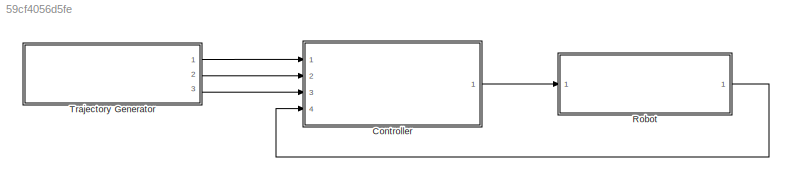
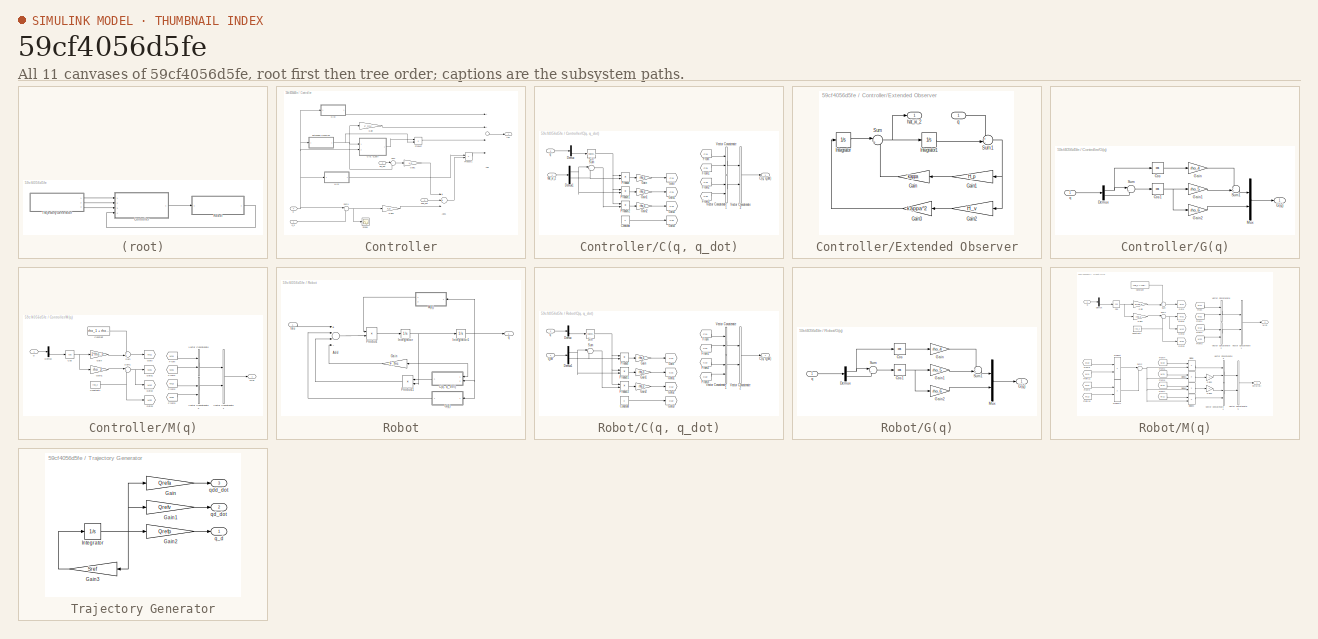
[diagram: thumbnail index - all 11 canvases of the model, root first then tree order]
MODEL slx_59cf4056d5fe
KIND model
CONFIG AbsTol = auto
CONFIG EnableMultiTasking = off
CONFIG FixedStep = auto
CONFIG InitFcn = % generator parameters\nA_1 = 1;\nA_2 = 1;\npsi_1 = 0;\npsi_2 = 0;\nomegaref_1 = 1;\nomegaref_2 = 2;\n\nwref_0 = [A_1*sin(psi_1) omegaref_1*A_1*cos(psi_1) A_2*sin(psi_2) omegaref_2*A_2*cos(psi_2)];\nSref = [0 1 0 0; -omegaref_1^2 0 0 0 ; 0 0 0 1; 0 0 -omegaref_2^2 0];\nQrefp = [1 0 0 0; 0 0 1 0];\nQrefv = [0 1 0 0 ; 0 0 0 1];\nQrefa = [-omegaref_1^2 0 0 0; 0 0 -omegaref_2^2 0];\n\n% model parameters\nm_1 = 1;\nm_...<+433ch>
CONFIG MaxStep = auto
CONFIG MinStep = auto
CONFIG RelTol = 1e-3
CONFIG SampleTimeConstraint = Unconstrained
CONFIG Solver = VariableStepAuto
CONFIG SolverName = VariableStepAuto
CONFIG StartTime = 0.0
CONFIG StopTime = 10.0
BLOCK [SubSystem] Controller
  Ports = [4, 1]
  RequestExecContextInheritance = off
BLOCK [Sum] Controller/Add
  InputSameDT = off
  Inputs = 4
  OutDataTypeStr = Inherit: Inherit via internal rule
  Ports = [4, 1]
  SaturateOnIntegerOverflow = off
BLOCK [Sum] Controller/Add1
  InputSameDT = off
  Inputs = 3
  OutDataTypeStr = Inherit: Inherit via internal rule
  Ports = [3, 1]
  SaturateOnIntegerOverflow = off
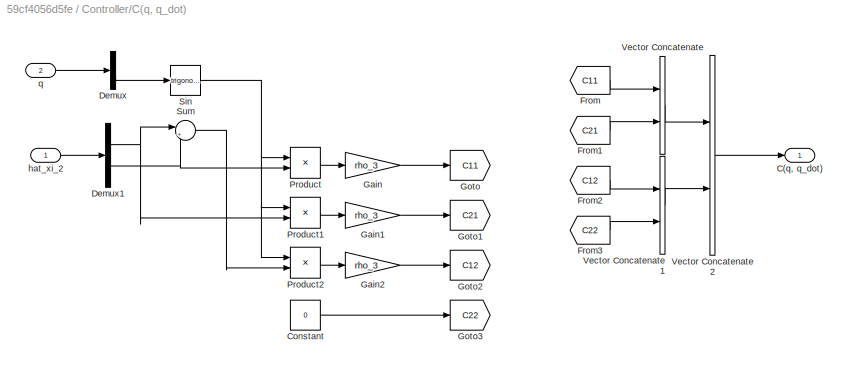
BLOCK [SubSystem] Controller/C(q, q_dot)
  Ports = [2, 1]
  RequestExecContextInheritance = off
BLOCK [Outport] Controller/C(q, q_dot)/C(q, q_dot)
  IconDisplay = Port number
BLOCK [Constant] Controller/C(q, q_dot)/Constant
  Value = 0
BLOCK [Demux] Controller/C(q, q_dot)/Demux
  DisplayOption = bar
  Outputs = 2
  Ports = [1, 2]
BLOCK [Demux] Controller/C(q, q_dot)/Demux1
  DisplayOption = bar
  Outputs = 2
  Ports = [1, 2]
BLOCK [From] Controller/C(q, q_dot)/From
  GotoTag = C11
BLOCK [From] Controller/C(q, q_dot)/From1
  GotoTag = C21
BLOCK [From] Controller/C(q, q_dot)/From2
  GotoTag = C12
BLOCK [From] Controller/C(q, q_dot)/From3
  GotoTag = C22
BLOCK [Gain] Controller/C(q, q_dot)/Gain
  Gain = rho_3
  OutDataTypeStr = Inherit: Inherit via internal rule
  ParamDataTypeStr = Inherit: Inherit via internal rule
  SaturateOnIntegerOverflow = off
BLOCK [Gain] Controller/C(q, q_dot)/Gain1
  Gain = rho_3
  OutDataTypeStr = Inherit: Inherit via internal rule
  ParamDataTypeStr = Inherit: Inherit via internal rule
  SaturateOnIntegerOverflow = off
BLOCK [Gain] Controller/C(q, q_dot)/Gain2
  Gain = rho_3
  OutDataTypeStr = Inherit: Inherit via internal rule
  ParamDataTypeStr = Inherit: Inherit via internal rule
  SaturateOnIntegerOverflow = off
BLOCK [Goto] Controller/C(q, q_dot)/Goto
  GotoTag = C11
BLOCK [Goto] Controller/C(q, q_dot)/Goto1
  GotoTag = C21
BLOCK [Goto] Controller/C(q, q_dot)/Goto2
  GotoTag = C12
BLOCK [Goto] Controller/C(q, q_dot)/Goto3
  GotoTag = C22
BLOCK [Product] Controller/C(q, q_dot)/Product
  InputSameDT = off
  OutDataTypeStr = Inherit: Inherit via internal rule
  Ports = [2, 1]
  RndMeth = Floor
  SaturateOnIntegerOverflow = off
BLOCK [Product] Controller/C(q, q_dot)/Product1
  InputSameDT = off
  OutDataTypeStr = Inherit: Inherit via internal rule
  Ports = [2, 1]
  RndMeth = Floor
  SaturateOnIntegerOverflow = off
BLOCK [Product] Controller/C(q, q_dot)/Product2
  InputSameDT = off
  OutDataTypeStr = Inherit: Inherit via internal rule
  Ports = [2, 1]
  RndMeth = Floor
  SaturateOnIntegerOverflow = off
BLOCK [Trigonometry] Controller/C(q, q_dot)/Sin
  Ports = [1, 1]
BLOCK [Sum] Controller/C(q, q_dot)/Sum
  IconShape = round
  InputSameDT = off
  Inputs = |++
  OutDataTypeStr = Inherit: Inherit via internal rule
  Ports = [2, 1]
  SaturateOnIntegerOverflow = off
BLOCK [Concatenate] Controller/C(q, q_dot)/Vector Concatenate
  Ports = [2, 1]
BLOCK [Concatenate] Controller/C(q, q_dot)/Vector Concatenate1
  Ports = [2, 1]
BLOCK [Concatenate] Controller/C(q, q_dot)/Vector Concatenate2
  ConcatenateDimension = 2
  Mode = Multidimensional array
  Ports = [2, 1]
BLOCK [Inport] Controller/C(q, q_dot)/hat_xi_2
  IconDisplay = Port number
BLOCK [Inport] Controller/C(q, q_dot)/q
  IconDisplay = Port number
  Port = 2
BLOCK [SubSystem] Controller/Extended Observer
  Ports = [1, 1]
  RequestExecContextInheritance = off
BLOCK [Gain] Controller/Extended Observer/Gain
  Gain = kappa
  OutDataTypeStr = Inherit: Inherit via internal rule
  ParamDataTypeStr = Inherit: Inherit via internal rule
  SaturateOnIntegerOverflow = off
BLOCK [Gain] Controller/Extended Observer/Gain1
  Gain = H_p
  Multiplication = Matrix(K*u) (u vector)
  OutDataTypeStr = Inherit: Inherit via internal rule
  ParamDataTypeStr = Inherit: Inherit via internal rule
  SaturateOnIntegerOverflow = off
BLOCK [Gain] Controller/Extended Observer/Gain2
  Gain = H_v
  Multiplication = Matrix(K*u) (u vector)
  OutDataTypeStr = Inherit: Inherit via internal rule
  ParamDataTypeStr = Inherit: Inherit via internal rule
  SaturateOnIntegerOverflow = off
BLOCK [Gain] Controller/Extended Observer/Gain3
  Gain = kappa^2
  OutDataTypeStr = Inherit: Inherit via internal rule
  ParamDataTypeStr = Inherit: Inherit via internal rule
  SaturateOnIntegerOverflow = off
BLOCK [Integrator] Controller/Extended Observer/Integrator
  Ports = [1, 1]
BLOCK [Integrator] Controller/Extended Observer/Integrator1
  Ports = [1, 1]
BLOCK [Sum] Controller/Extended Observer/Sum
  IconShape = round
  InputSameDT = off
  Inputs = |++
  OutDataTypeStr = Inherit: Inherit via internal rule
  Ports = [2, 1]
  SaturateOnIntegerOverflow = off
BLOCK [Sum] Controller/Extended Observer/Sum1
  IconShape = round
  InputSameDT = off
  Inputs = +-|
  OutDataTypeStr = Inherit: Inherit via internal rule
  Ports = [2, 1]
  SaturateOnIntegerOverflow = off
BLOCK [Outport] Controller/Extended Observer/hat_xi_2
  IconDisplay = Port number
BLOCK [Inport] Controller/Extended Observer/q
  IconDisplay = Port number
BLOCK [SubSystem] Controller/G(q)
  Ports = [1, 1]
  RequestExecContextInheritance = off
BLOCK [Trigonometry] Controller/G(q)/Cos
  Operator = cos
  Ports = [1, 1]
BLOCK [Trigonometry] Controller/G(q)/Cos1
  Operator = cos
  Ports = [1, 1]
BLOCK [Demux] Controller/G(q)/Demux
  DisplayOption = bar
  Outputs = 2
  Ports = [1, 2]
BLOCK [Outport] Controller/G(q)/G(q)
  IconDisplay = Port number
BLOCK [Gain] Controller/G(q)/Gain
  Gain = rho_4
  OutDataTypeStr = Inherit: Inherit via internal rule
  ParamDataTypeStr = Inherit: Inherit via internal rule
  SaturateOnIntegerOverflow = off
BLOCK [Gain] Controller/G(q)/Gain1
  Gain = rho_5
  OutDataTypeStr = Inherit: Inherit via internal rule
  ParamDataTypeStr = Inherit: Inherit via internal rule
  SaturateOnIntegerOverflow = off
BLOCK [Gain] Controller/G(q)/Gain2
  Gain = rho_6
  OutDataTypeStr = Inherit: Inherit via internal rule
  ParamDataTypeStr = Inherit: Inherit via internal rule
  SaturateOnIntegerOverflow = off
BLOCK [Mux] Controller/G(q)/Mux
  DisplayOption = bar
  Inputs = 2
  Ports = [2, 1]
BLOCK [Sum] Controller/G(q)/Sum
  IconShape = round
  InputSameDT = off
  Inputs = |++
  OutDataTypeStr = Inherit: Inherit via internal rule
  Ports = [2, 1]
  SaturateOnIntegerOverflow = off
BLOCK [Sum] Controller/G(q)/Sum1
  IconShape = round
  InputSameDT = off
  Inputs = ++|
  OutDataTypeStr = Inherit: Inherit via internal rule
  Ports = [2, 1]
  SaturateOnIntegerOverflow = off
BLOCK [Inport] Controller/G(q)/q
  IconDisplay = Port number
BLOCK [Gain] Controller/Gain
  Gain = F_fric
  Multiplication = Matrix(K*u) (u vector)
  OutDataTypeStr = Inherit: Inherit via internal rule
  ParamDataTypeStr = Inherit: Inherit via internal rule
  SaturateOnIntegerOverflow = off
BLOCK [Gain] Controller/Gain1
  Gain = K_d
  Multiplication = Matrix(K*u) (u vector)
  OutDataTypeStr = Inherit: Inherit via internal rule
  ParamDataTypeStr = Inherit: Inherit via internal rule
  SaturateOnIntegerOverflow = off
BLOCK [Gain] Controller/Gain2
  Gain = K_p
  Multiplication = Matrix(K*u) (u vector)
  OutDataTypeStr = Inherit: Inherit via internal rule
  ParamDataTypeStr = Inherit: Inherit via internal rule
  SaturateOnIntegerOverflow = off
BLOCK [SubSystem] Controller/M(q)
  Ports = [1, 1]
  RequestExecContextInheritance = off
BLOCK [Constant] Controller/M(q)/Constant
  Value = rho_1 + rho_2
BLOCK [Constant] Controller/M(q)/Constant1
  Value = rho_2
BLOCK [Trigonometry] Controller/M(q)/Cos
  Operator = cos
  Ports = [1, 1]
BLOCK [Demux] Controller/M(q)/Demux
  DisplayOption = bar
  Outputs = 2
  Ports = [1, 2]
BLOCK [From] Controller/M(q)/From
  GotoTag = M11
BLOCK [From] Controller/M(q)/From1
  GotoTag = M21
BLOCK [From] Controller/M(q)/From2
  GotoTag = M12
BLOCK [From] Controller/M(q)/From3
  GotoTag = M22
BLOCK [Gain] Controller/M(q)/Gain
  Gain = 2*rho_3
  OutDataTypeStr = Inherit: Inherit via internal rule
  ParamDataTypeStr = Inherit: Inherit via internal rule
  SaturateOnIntegerOverflow = off
BLOCK [Gain] Controller/M(q)/Gain1
  Gain = rho_3
  OutDataTypeStr = Inherit: Inherit via internal rule
  ParamDataTypeStr = Inherit: Inherit via internal rule
  SaturateOnIntegerOverflow = off
BLOCK [Goto] Controller/M(q)/Goto
  GotoTag = M11
BLOCK [Goto] Controller/M(q)/Goto1
  GotoTag = M21
BLOCK [Goto] Controller/M(q)/Goto2
  GotoTag = M12
BLOCK [Goto] Controller/M(q)/Goto3
  GotoTag = M22
BLOCK [Outport] Controller/M(q)/M(q)
  IconDisplay = Port number
BLOCK [Sum] Controller/M(q)/Sum
  IconShape = round
  InputSameDT = off
  Inputs = ++|
  OutDataTypeStr = Inherit: Inherit via internal rule
  Ports = [2, 1]
  SaturateOnIntegerOverflow = off
BLOCK [Sum] Controller/M(q)/Sum1
  IconShape = round
  InputSameDT = off
  Inputs = |++
  OutDataTypeStr = Inherit: Inherit via internal rule
  Ports = [2, 1]
  SaturateOnIntegerOverflow = off
BLOCK [Concatenate] Controller/M(q)/Vector Concatenate
  Ports = [2, 1]
BLOCK [Concatenate] Controller/M(q)/Vector Concatenate1
  ConcatenateDimension = 2
  Mode = Multidimensional array
  Ports = [2, 1]
BLOCK [Concatenate] Controller/M(q)/Vector Concatenate2
  Ports = [2, 1]
BLOCK [Inport] Controller/M(q)/q
  IconDisplay = Port number
BLOCK [Product] Controller/Product
  InputSameDT = off
  Multiplication = Matrix(*)
  OutDataTypeStr = Inherit: Inherit via internal rule
  Ports = [2, 1]
  RndMeth = Floor
  SaturateOnIntegerOverflow = off
BLOCK [Product] Controller/Product1
  InputSameDT = off
  Multiplication = Matrix(*)
  OutDataTypeStr = Inherit: Inherit via internal rule
  Ports = [2, 1]
  RndMeth = Floor
  SaturateOnIntegerOverflow = off
BLOCK [Scope] Controller/Scope
  Floating = off
  NumInputPorts = 1
  Ports = [1]
  ScopeSpecificationString = Simulink.scopes.TimeScopeBlockCfg('CurrentConfiguration', extmgr.ConfigurationSet(extmgr.Configuration('Core','General UI',true),extmgr.Configuration('Core','Source UI',true),extmgr.Configuration('Sources','WiredSimulink',true),extmgr.Configuration('Visuals','Time Domain',true,'SerializedDisplays',{struct('MinYLimReal','-0.00241','MaxYLimReal','0.02168','YLabelReal','','MinYLimMag','0.00000','MaxY...<+1368ch>
BLOCK [Sum] Controller/Sum
  IconShape = round
  InputSameDT = off
  Inputs = |+-
  OutDataTypeStr = Inherit: Inherit via internal rule
  Ports = [2, 1]
  SaturateOnIntegerOverflow = off
BLOCK [Sum] Controller/Sum1
  IconShape = round
  InputSameDT = off
  Inputs = |-+
  OutDataTypeStr = Inherit: Inherit via internal rule
  Ports = [2, 1]
  SaturateOnIntegerOverflow = off
BLOCK [Inport] Controller/q
  IconDisplay = Port number
  Port = 4
BLOCK [Inport] Controller/q_d
  IconDisplay = Port number
BLOCK [Inport] Controller/qd_dot
  IconDisplay = Port number
  Port = 2
BLOCK [Inport] Controller/qdd_dot
  IconDisplay = Port number
  Port = 3
BLOCK [Outport] Controller/tau
  IconDisplay = Port number
BLOCK [SubSystem] Robot
  Ports = [1, 1]
  RequestExecContextInheritance = off
BLOCK [Sum] Robot/Add
  InputSameDT = off
  Inputs = +---
  OutDataTypeStr = Inherit: Inherit via internal rule
  Ports = [4, 1]
  SaturateOnIntegerOverflow = off
BLOCK [SubSystem] Robot/C(q, q_dot)
  Ports = [2, 1]
  RequestExecContextInheritance = off
BLOCK [Outport] Robot/C(q, q_dot)/C(q, q_dot)
  IconDisplay = Port number
BLOCK [Constant] Robot/C(q, q_dot)/Constant
  Value = 0
BLOCK [Demux] Robot/C(q, q_dot)/Demux
  DisplayOption = bar
  Outputs = 2
  Ports = [1, 2]
BLOCK [Demux] Robot/C(q, q_dot)/Demux1
  DisplayOption = bar
  Outputs = 2
  Ports = [1, 2]
BLOCK [From] Robot/C(q, q_dot)/From
  GotoTag = C11
BLOCK [From] Robot/C(q, q_dot)/From1
  GotoTag = C21
BLOCK [From] Robot/C(q, q_dot)/From2
  GotoTag = C12
BLOCK [From] Robot/C(q, q_dot)/From3
  GotoTag = C22
BLOCK [Gain] Robot/C(q, q_dot)/Gain
  Gain = rho_3
  OutDataTypeStr = Inherit: Inherit via internal rule
  ParamDataTypeStr = Inherit: Inherit via internal rule
  SaturateOnIntegerOverflow = off
BLOCK [Gain] Robot/C(q, q_dot)/Gain1
  Gain = rho_3
  OutDataTypeStr = Inherit: Inherit via internal rule
  ParamDataTypeStr = Inherit: Inherit via internal rule
  SaturateOnIntegerOverflow = off
BLOCK [Gain] Robot/C(q, q_dot)/Gain2
  Gain = rho_3
  OutDataTypeStr = Inherit: Inherit via internal rule
  ParamDataTypeStr = Inherit: Inherit via internal rule
  SaturateOnIntegerOverflow = off
BLOCK [Goto] Robot/C(q, q_dot)/Goto
  GotoTag = C11
BLOCK [Goto] Robot/C(q, q_dot)/Goto1
  GotoTag = C21
BLOCK [Goto] Robot/C(q, q_dot)/Goto2
  GotoTag = C12
BLOCK [Goto] Robot/C(q, q_dot)/Goto3
  GotoTag = C22
BLOCK [Product] Robot/C(q, q_dot)/Product
  InputSameDT = off
  OutDataTypeStr = Inherit: Inherit via internal rule
  Ports = [2, 1]
  RndMeth = Floor
  SaturateOnIntegerOverflow = off
BLOCK [Product] Robot/C(q, q_dot)/Product1
  InputSameDT = off
  OutDataTypeStr = Inherit: Inherit via internal rule
  Ports = [2, 1]
  RndMeth = Floor
  SaturateOnIntegerOverflow = off
BLOCK [Product] Robot/C(q, q_dot)/Product2
  InputSameDT = off
  OutDataTypeStr = Inherit: Inherit via internal rule
  Ports = [2, 1]
  RndMeth = Floor
  SaturateOnIntegerOverflow = off
BLOCK [Trigonometry] Robot/C(q, q_dot)/Sin
  Ports = [1, 1]
BLOCK [Sum] Robot/C(q, q_dot)/Sum
  IconShape = round
  InputSameDT = off
  Inputs = |++
  OutDataTypeStr = Inherit: Inherit via internal rule
  Ports = [2, 1]
  SaturateOnIntegerOverflow = off
BLOCK [Concatenate] Robot/C(q, q_dot)/Vector Concatenate
  Ports = [2, 1]
BLOCK [Concatenate] Robot/C(q, q_dot)/Vector Concatenate1
  Ports = [2, 1]
BLOCK [Concatenate] Robot/C(q, q_dot)/Vector Concatenate2
  ConcatenateDimension = 2
  Mode = Multidimensional array
  Ports = [2, 1]
BLOCK [Inport] Robot/C(q, q_dot)/q
  IconDisplay = Port number
  Port = 2
BLOCK [Inport] Robot/C(q, q_dot)/q_dot
  IconDisplay = Port number
BLOCK [SubSystem] Robot/G(q)
  Ports = [1, 1]
  RequestExecContextInheritance = off
BLOCK [Trigonometry] Robot/G(q)/Cos
  Operator = cos
  Ports = [1, 1]
BLOCK [Trigonometry] Robot/G(q)/Cos1
  Operator = cos
  Ports = [1, 1]
BLOCK [Demux] Robot/G(q)/Demux
  DisplayOption = bar
  Outputs = 2
  Ports = [1, 2]
BLOCK [Outport] Robot/G(q)/G(q)
  IconDisplay = Port number
BLOCK [Gain] Robot/G(q)/Gain
  Gain = rho_4
  OutDataTypeStr = Inherit: Inherit via internal rule
  ParamDataTypeStr = Inherit: Inherit via internal rule
  SaturateOnIntegerOverflow = off
BLOCK [Gain] Robot/G(q)/Gain1
  Gain = rho_5
  OutDataTypeStr = Inherit: Inherit via internal rule
  ParamDataTypeStr = Inherit: Inherit via internal rule
  SaturateOnIntegerOverflow = off
BLOCK [Gain] Robot/G(q)/Gain2
  Gain = rho_6
  OutDataTypeStr = Inherit: Inherit via internal rule
  ParamDataTypeStr = Inherit: Inherit via internal rule
  SaturateOnIntegerOverflow = off
BLOCK [Mux] Robot/G(q)/Mux
  DisplayOption = bar
  Inputs = 2
  Ports = [2, 1]
BLOCK [Sum] Robot/G(q)/Sum
  IconShape = round
  InputSameDT = off
  Inputs = |++
  OutDataTypeStr = Inherit: Inherit via internal rule
  Ports = [2, 1]
  SaturateOnIntegerOverflow = off
BLOCK [Sum] Robot/G(q)/Sum1
  IconShape = round
  InputSameDT = off
  Inputs = ++|
  OutDataTypeStr = Inherit: Inherit via internal rule
  Ports = [2, 1]
  SaturateOnIntegerOverflow = off
BLOCK [Inport] Robot/G(q)/q
  IconDisplay = Port number
BLOCK [Gain] Robot/Gain
  Gain = F_fric
  Multiplication = Matrix(K*u) (u vector)
  OutDataTypeStr = Inherit: Inherit via internal rule
  ParamDataTypeStr = Inherit: Inherit via internal rule
  SaturateOnIntegerOverflow = off
BLOCK [Integrator] Robot/Integrator
  Ports = [1, 1]
BLOCK [Integrator] Robot/Integrator1
  Ports = [1, 1]
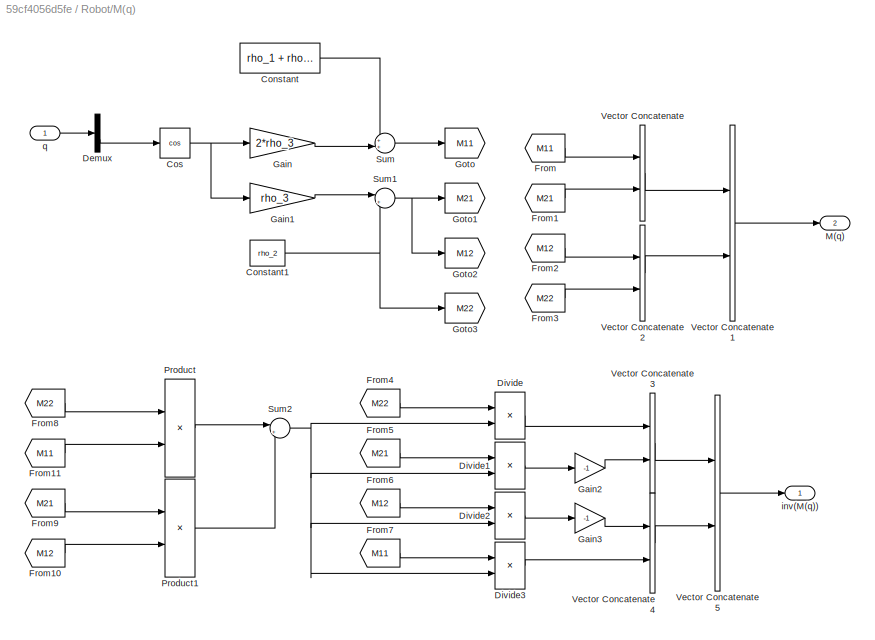
BLOCK [SubSystem] Robot/M(q)
  Ports = [1, 2]
  RequestExecContextInheritance = off
BLOCK [Constant] Robot/M(q)/Constant
  Value = rho_1 + rho_2
BLOCK [Constant] Robot/M(q)/Constant1
  Value = rho_2
BLOCK [Trigonometry] Robot/M(q)/Cos
  Operator = cos
  Ports = [1, 1]
BLOCK [Demux] Robot/M(q)/Demux
  DisplayOption = bar
  Outputs = 2
  Ports = [1, 2]
BLOCK [Product] Robot/M(q)/Divide
  InputSameDT = off
  Inputs = */
  OutDataTypeStr = Inherit: Inherit via internal rule
  Ports = [2, 1]
  RndMeth = Floor
  SaturateOnIntegerOverflow = off
BLOCK [Product] Robot/M(q)/Divide1
  InputSameDT = off
  Inputs = */
  OutDataTypeStr = Inherit: Inherit via internal rule
  Ports = [2, 1]
  RndMeth = Floor
  SaturateOnIntegerOverflow = off
BLOCK [Product] Robot/M(q)/Divide2
  InputSameDT = off
  Inputs = */
  OutDataTypeStr = Inherit: Inherit via internal rule
  Ports = [2, 1]
  RndMeth = Floor
  SaturateOnIntegerOverflow = off
BLOCK [Product] Robot/M(q)/Divide3
  InputSameDT = off
  Inputs = */
  OutDataTypeStr = Inherit: Inherit via internal rule
  Ports = [2, 1]
  RndMeth = Floor
  SaturateOnIntegerOverflow = off
BLOCK [From] Robot/M(q)/From
  GotoTag = M11
BLOCK [From] Robot/M(q)/From1
  GotoTag = M21
BLOCK [From] Robot/M(q)/From10
  GotoTag = M12
BLOCK [From] Robot/M(q)/From11
  GotoTag = M11
BLOCK [From] Robot/M(q)/From2
  GotoTag = M12
BLOCK [From] Robot/M(q)/From3
  GotoTag = M22
BLOCK [From] Robot/M(q)/From4
  GotoTag = M22
BLOCK [From] Robot/M(q)/From5
  GotoTag = M21
BLOCK [From] Robot/M(q)/From6
  GotoTag = M12
BLOCK [From] Robot/M(q)/From7
  GotoTag = M11
BLOCK [From] Robot/M(q)/From8
  GotoTag = M22
BLOCK [From] Robot/M(q)/From9
  GotoTag = M21
BLOCK [Gain] Robot/M(q)/Gain
  Gain = 2*rho_3
  OutDataTypeStr = Inherit: Inherit via internal rule
  ParamDataTypeStr = Inherit: Inherit via internal rule
  SaturateOnIntegerOverflow = off
BLOCK [Gain] Robot/M(q)/Gain1
  Gain = rho_3
  OutDataTypeStr = Inherit: Inherit via internal rule
  ParamDataTypeStr = Inherit: Inherit via internal rule
  SaturateOnIntegerOverflow = off
BLOCK [Gain] Robot/M(q)/Gain2
  Gain = -1
  OutDataTypeStr = Inherit: Inherit via internal rule
  ParamDataTypeStr = Inherit: Inherit via internal rule
  SaturateOnIntegerOverflow = off
BLOCK [Gain] Robot/M(q)/Gain3
  Gain = -1
  OutDataTypeStr = Inherit: Inherit via internal rule
  ParamDataTypeStr = Inherit: Inherit via internal rule
  SaturateOnIntegerOverflow = off
BLOCK [Goto] Robot/M(q)/Goto
  GotoTag = M11
BLOCK [Goto] Robot/M(q)/Goto1
  GotoTag = M21
BLOCK [Goto] Robot/M(q)/Goto2
  GotoTag = M12
BLOCK [Goto] Robot/M(q)/Goto3
  GotoTag = M22
BLOCK [Outport] Robot/M(q)/M(q)
  IconDisplay = Port number
  Port = 2
BLOCK [Product] Robot/M(q)/Product
  InputSameDT = off
  OutDataTypeStr = Inherit: Inherit via internal rule
  Ports = [2, 1]
  RndMeth = Floor
  SaturateOnIntegerOverflow = off
BLOCK [Product] Robot/M(q)/Product1
  InputSameDT = off
  OutDataTypeStr = Inherit: Inherit via internal rule
  Ports = [2, 1]
  RndMeth = Floor
  SaturateOnIntegerOverflow = off
BLOCK [Sum] Robot/M(q)/Sum
  IconShape = round
  InputSameDT = off
  Inputs = ++|
  OutDataTypeStr = Inherit: Inherit via internal rule
  Ports = [2, 1]
  SaturateOnIntegerOverflow = off
BLOCK [Sum] Robot/M(q)/Sum1
  IconShape = round
  InputSameDT = off
  Inputs = |++
  OutDataTypeStr = Inherit: Inherit via internal rule
  Ports = [2, 1]
  SaturateOnIntegerOverflow = off
BLOCK [Sum] Robot/M(q)/Sum2
  IconShape = round
  InputSameDT = off
  Inputs = |+-
  OutDataTypeStr = Inherit: Inherit via internal rule
  Ports = [2, 1]
  SaturateOnIntegerOverflow = off
BLOCK [Concatenate] Robot/M(q)/Vector Concatenate
  Ports = [2, 1]
BLOCK [Concatenate] Robot/M(q)/Vector Concatenate1
  ConcatenateDimension = 2
  Mode = Multidimensional array
  Ports = [2, 1]
BLOCK [Concatenate] Robot/M(q)/Vector Concatenate2
  Ports = [2, 1]
BLOCK [Concatenate] Robot/M(q)/Vector Concatenate3
  ConcatenateDimension = 2
  Mode = Multidimensional array
  Ports = [2, 1]
BLOCK [Concatenate] Robot/M(q)/Vector Concatenate4
  ConcatenateDimension = 2
  Mode = Multidimensional array
  Ports = [2, 1]
BLOCK [Concatenate] Robot/M(q)/Vector Concatenate5
  Mode = Multidimensional array
  Ports = [2, 1]
BLOCK [Outport] Robot/M(q)/inv(M(q))
  IconDisplay = Port number
BLOCK [Inport] Robot/M(q)/q
  IconDisplay = Port number
BLOCK [Product] Robot/Product
  InputSameDT = off
  Multiplication = Matrix(*)
  OutDataTypeStr = Inherit: Inherit via internal rule
  Ports = [2, 1]
  RndMeth = Floor
  SaturateOnIntegerOverflow = off
BLOCK [Product] Robot/Product1
  InputSameDT = off
  Multiplication = Matrix(*)
  OutDataTypeStr = Inherit: Inherit via internal rule
  Ports = [2, 1]
  RndMeth = Floor
  SaturateOnIntegerOverflow = off
BLOCK [Outport] Robot/q
  IconDisplay = Port number
BLOCK [Inport] Robot/tau
  IconDisplay = Port number
BLOCK [SubSystem] Trajectory Generator
  Ports = [0, 3]
  RequestExecContextInheritance = off
BLOCK [Gain] Trajectory Generator/Gain
  Gain = Qrefa
  Multiplication = Matrix(K*u) (u vector)
  OutDataTypeStr = Inherit: Inherit via internal rule
  ParamDataTypeStr = Inherit: Inherit via internal rule
  SaturateOnIntegerOverflow = off
BLOCK [Gain] Trajectory Generator/Gain1
  Gain = Qrefv
  Multiplication = Matrix(K*u) (u vector)
  OutDataTypeStr = Inherit: Inherit via internal rule
  ParamDataTypeStr = Inherit: Inherit via internal rule
  SaturateOnIntegerOverflow = off
BLOCK [Gain] Trajectory Generator/Gain2
  Gain = Qrefp
  Multiplication = Matrix(K*u) (u vector)
  OutDataTypeStr = Inherit: Inherit via internal rule
  ParamDataTypeStr = Inherit: Inherit via internal rule
  SaturateOnIntegerOverflow = off
BLOCK [Gain] Trajectory Generator/Gain3
  Gain = Sref
  Multiplication = Matrix(K*u) (u vector)
  OutDataTypeStr = Inherit: Inherit via internal rule
  ParamDataTypeStr = Inherit: Inherit via internal rule
  SaturateOnIntegerOverflow = off
BLOCK [Integrator] Trajectory Generator/Integrator
  InitialCondition = wref_0
  Ports = [1, 1]
BLOCK [Outport] Trajectory Generator/q_d
  IconDisplay = Port number
BLOCK [Outport] Trajectory Generator/qd_dot
  IconDisplay = Port number
  Port = 2
BLOCK [Outport] Trajectory Generator/qdd_dot
  IconDisplay = Port number
  Port = 3
LINE Controller/Add1:1 -> Controller/Product1:2
LINE Controller/Add:1 -> Controller/tau:1
LINE Controller/C(q, q_dot)/Constant:1 -> Controller/C(q, q_dot)/Goto3:1
NET Controller/C(q, q_dot)/Demux1:1 -> Controller/C(q, q_dot)/Product1:2, Controller/C(q, q_dot)/Sum:1
NET Controller/C(q, q_dot)/Demux1:2 -> Controller/C(q, q_dot)/Product:2, Controller/C(q, q_dot)/Sum:2
LINE Controller/C(q, q_dot)/Demux:2 -> Controller/C(q, q_dot)/Sin:1
LINE Controller/C(q, q_dot)/From1:1 -> Controller/C(q, q_dot)/Vector Concatenate:2
LINE Controller/C(q, q_dot)/From2:1 -> Controller/C(q, q_dot)/Vector Concatenate1:1
LINE Controller/C(q, q_dot)/From3:1 -> Controller/C(q, q_dot)/Vector Concatenate1:2
LINE Controller/C(q, q_dot)/From:1 -> Controller/C(q, q_dot)/Vector Concatenate:1
LINE Controller/C(q, q_dot)/Gain1:1 -> Controller/C(q, q_dot)/Goto1:1
LINE Controller/C(q, q_dot)/Gain2:1 -> Controller/C(q, q_dot)/Goto2:1
LINE Controller/C(q, q_dot)/Gain:1 -> Controller/C(q, q_dot)/Goto:1
LINE Controller/C(q, q_dot)/Product1:1 -> Controller/C(q, q_dot)/Gain1:1
LINE Controller/C(q, q_dot)/Product2:1 -> Controller/C(q, q_dot)/Gain2:1
LINE Controller/C(q, q_dot)/Product:1 -> Controller/C(q, q_dot)/Gain:1
NET Controller/C(q, q_dot)/Sin:1 -> Controller/C(q, q_dot)/Product1:1, Controller/C(q, q_dot)/Product2:1, Controller/C(q, q_dot)/Product:1
LINE Controller/C(q, q_dot)/Sum:1 -> Controller/C(q, q_dot)/Product2:2
LINE Controller/C(q, q_dot)/Vector Concatenate1:1 -> Controller/C(q, q_dot)/Vector Concatenate2:2
LINE Controller/C(q, q_dot)/Vector Concatenate2:1 -> Controller/C(q, q_dot)/C(q, q_dot):1
LINE Controller/C(q, q_dot)/Vector Concatenate:1 -> Controller/C(q, q_dot)/Vector Concatenate2:1
LINE Controller/C(q, q_dot)/hat_xi_2:1 -> Controller/C(q, q_dot)/Demux1:1
LINE Controller/C(q, q_dot)/q:1 -> Controller/C(q, q_dot)/Demux:1
LINE Controller/C(q, q_dot):1 -> Controller/Product:1
LINE Controller/Extended Observer/Gain1:1 -> Controller/Extended Observer/Gain:1
LINE Controller/Extended Observer/Gain2:1 -> Controller/Extended Observer/Gain3:1
LINE Controller/Extended Observer/Gain3:1 -> Controller/Extended Observer/Integrator:1
LINE Controller/Extended Observer/Gain:1 -> Controller/Extended Observer/Sum:2
LINE Controller/Extended Observer/Integrator1:1 -> Controller/Extended Observer/Sum1:2
LINE Controller/Extended Observer/Integrator:1 -> Controller/Extended Observer/Sum:1
NET Controller/Extended Observer/Sum1:1 -> Controller/Extended Observer/Gain1:1, Controller/Extended Observer/Gain2:1
NET Controller/Extended Observer/Sum:1 -> Controller/Extended Observer/Integrator1:1, Controller/Extended Observer/hat_xi_2:1
LINE Controller/Extended Observer/q:1 -> Controller/Extended Observer/Sum1:1
NET Controller/Extended Observer:1 -> Controller/C(q, q_dot):1, Controller/Gain:1, Controller/Product:2, Controller/Sum:2
NET Controller/G(q)/Cos1:1 -> Controller/G(q)/Gain1:1, Controller/G(q)/Gain2:1
LINE Controller/G(q)/Cos:1 -> Controller/G(q)/Gain:1
NET Controller/G(q)/Demux:1 -> Controller/G(q)/Cos:1, Controller/G(q)/Sum:1
LINE Controller/G(q)/Demux:2 -> Controller/G(q)/Sum:2
LINE Controller/G(q)/Gain1:1 -> Controller/G(q)/Sum1:2
LINE Controller/G(q)/Gain2:1 -> Controller/G(q)/Mux:2
LINE Controller/G(q)/Gain:1 -> Controller/G(q)/Sum1:1
LINE Controller/G(q)/Mux:1 -> Controller/G(q)/G(q):1
LINE Controller/G(q)/Sum1:1 -> Controller/G(q)/Mux:1
LINE Controller/G(q)/Sum:1 -> Controller/G(q)/Cos1:1
LINE Controller/G(q)/q:1 -> Controller/G(q)/Demux:1
LINE Controller/G(q):1 -> Controller/Add:1
LINE Controller/Gain1:1 -> Controller/Add1:1
LINE Controller/Gain2:1 -> Controller/Add1:3
LINE Controller/Gain:1 -> Controller/Add:2
NET Controller/M(q)/Constant1:1 -> Controller/M(q)/Goto3:1, Controller/M(q)/Sum1:2
LINE Controller/M(q)/Constant:1 -> Controller/M(q)/Sum:1
NET Controller/M(q)/Cos:1 -> Controller/M(q)/Gain1:1, Controller/M(q)/Gain:1
LINE Controller/M(q)/Demux:2 -> Controller/M(q)/Cos:1
LINE Controller/M(q)/From1:1 -> Controller/M(q)/Vector Concatenate:2
LINE Controller/M(q)/From2:1 -> Controller/M(q)/Vector Concatenate2:1
LINE Controller/M(q)/From3:1 -> Controller/M(q)/Vector Concatenate2:2
LINE Controller/M(q)/From:1 -> Controller/M(q)/Vector Concatenate:1
LINE Controller/M(q)/Gain1:1 -> Controller/M(q)/Sum1:1
LINE Controller/M(q)/Gain:1 -> Controller/M(q)/Sum:2
NET Controller/M(q)/Sum1:1 -> Controller/M(q)/Goto1:1, Controller/M(q)/Goto2:1
LINE Controller/M(q)/Sum:1 -> Controller/M(q)/Goto:1
LINE Controller/M(q)/Vector Concatenate1:1 -> Controller/M(q)/M(q):1
LINE Controller/M(q)/Vector Concatenate2:1 -> Controller/M(q)/Vector Concatenate1:2
LINE Controller/M(q)/Vector Concatenate:1 -> Controller/M(q)/Vector Concatenate1:1
LINE Controller/M(q)/q:1 -> Controller/M(q)/Demux:1
LINE Controller/M(q):1 -> Controller/Product1:1
LINE Controller/Product1:1 -> Controller/Add:4
LINE Controller/Product:1 -> Controller/Add:3
NET Controller/Sum1:1 -> Controller/Gain2:1, Controller/Scope:1
LINE Controller/Sum:1 -> Controller/Gain1:1
NET Controller/q:1 -> Controller/C(q, q_dot):2, Controller/Extended Observer:1, Controller/G(q):1, Controller/M(q):1, Controller/Sum1:1
LINE Controller/q_d:1 -> Controller/Sum1:2
LINE Controller/qd_dot:1 -> Controller/Sum:1
LINE Controller/qdd_dot:1 -> Controller/Add1:2
LINE Controller:1 -> Robot:1
LINE Robot/Add:1 -> Robot/Product:2
LINE Robot/C(q, q_dot)/Constant:1 -> Robot/C(q, q_dot)/Goto3:1
NET Robot/C(q, q_dot)/Demux1:1 -> Robot/C(q, q_dot)/Product1:2, Robot/C(q, q_dot)/Sum:1
NET Robot/C(q, q_dot)/Demux1:2 -> Robot/C(q, q_dot)/Product:2, Robot/C(q, q_dot)/Sum:2
LINE Robot/C(q, q_dot)/Demux:2 -> Robot/C(q, q_dot)/Sin:1
LINE Robot/C(q, q_dot)/From1:1 -> Robot/C(q, q_dot)/Vector Concatenate:2
LINE Robot/C(q, q_dot)/From2:1 -> Robot/C(q, q_dot)/Vector Concatenate1:1
LINE Robot/C(q, q_dot)/From3:1 -> Robot/C(q, q_dot)/Vector Concatenate1:2
LINE Robot/C(q, q_dot)/From:1 -> Robot/C(q, q_dot)/Vector Concatenate:1
LINE Robot/C(q, q_dot)/Gain1:1 -> Robot/C(q, q_dot)/Goto1:1
LINE Robot/C(q, q_dot)/Gain2:1 -> Robot/C(q, q_dot)/Goto2:1
LINE Robot/C(q, q_dot)/Gain:1 -> Robot/C(q, q_dot)/Goto:1
LINE Robot/C(q, q_dot)/Product1:1 -> Robot/C(q, q_dot)/Gain1:1
LINE Robot/C(q, q_dot)/Product2:1 -> Robot/C(q, q_dot)/Gain2:1
LINE Robot/C(q, q_dot)/Product:1 -> Robot/C(q, q_dot)/Gain:1
NET Robot/C(q, q_dot)/Sin:1 -> Robot/C(q, q_dot)/Product1:1, Robot/C(q, q_dot)/Product2:1, Robot/C(q, q_dot)/Product:1
LINE Robot/C(q, q_dot)/Sum:1 -> Robot/C(q, q_dot)/Product2:2
LINE Robot/C(q, q_dot)/Vector Concatenate1:1 -> Robot/C(q, q_dot)/Vector Concatenate2:2
LINE Robot/C(q, q_dot)/Vector Concatenate2:1 -> Robot/C(q, q_dot)/C(q, q_dot):1
LINE Robot/C(q, q_dot)/Vector Concatenate:1 -> Robot/C(q, q_dot)/Vector Concatenate2:1
LINE Robot/C(q, q_dot)/q:1 -> Robot/C(q, q_dot)/Demux:1
LINE Robot/C(q, q_dot)/q_dot:1 -> Robot/C(q, q_dot)/Demux1:1
LINE Robot/C(q, q_dot):1 -> Robot/Product1:1
NET Robot/G(q)/Cos1:1 -> Robot/G(q)/Gain1:1, Robot/G(q)/Gain2:1
LINE Robot/G(q)/Cos:1 -> Robot/G(q)/Gain:1
NET Robot/G(q)/Demux:1 -> Robot/G(q)/Cos:1, Robot/G(q)/Sum:1
LINE Robot/G(q)/Demux:2 -> Robot/G(q)/Sum:2
LINE Robot/G(q)/Gain1:1 -> Robot/G(q)/Sum1:2
LINE Robot/G(q)/Gain2:1 -> Robot/G(q)/Mux:2
LINE Robot/G(q)/Gain:1 -> Robot/G(q)/Sum1:1
LINE Robot/G(q)/Mux:1 -> Robot/G(q)/G(q):1
LINE Robot/G(q)/Sum1:1 -> Robot/G(q)/Mux:1
LINE Robot/G(q)/Sum:1 -> Robot/G(q)/Cos1:1
LINE Robot/G(q)/q:1 -> Robot/G(q)/Demux:1
LINE Robot/G(q):1 -> Robot/Add:2
LINE Robot/Gain:1 -> Robot/Add:4
NET Robot/Integrator1:1 -> Robot/C(q, q_dot):2, Robot/G(q):1, Robot/M(q):1, Robot/q:1
NET Robot/Integrator:1 -> Robot/C(q, q_dot):1, Robot/Gain:1, Robot/Integrator1:1, Robot/Product1:2
NET Robot/M(q)/Constant1:1 -> Robot/M(q)/Goto3:1, Robot/M(q)/Sum1:2
LINE Robot/M(q)/Constant:1 -> Robot/M(q)/Sum:1
NET Robot/M(q)/Cos:1 -> Robot/M(q)/Gain1:1, Robot/M(q)/Gain:1
LINE Robot/M(q)/Demux:2 -> Robot/M(q)/Cos:1
LINE Robot/M(q)/Divide1:1 -> Robot/M(q)/Gain2:1
LINE Robot/M(q)/Divide2:1 -> Robot/M(q)/Gain3:1
LINE Robot/M(q)/Divide3:1 -> Robot/M(q)/Vector Concatenate4:2
LINE Robot/M(q)/Divide:1 -> Robot/M(q)/Vector Concatenate3:1
LINE Robot/M(q)/From10:1 -> Robot/M(q)/Product1:2
LINE Robot/M(q)/From11:1 -> Robot/M(q)/Product:2
LINE Robot/M(q)/From1:1 -> Robot/M(q)/Vector Concatenate:2
LINE Robot/M(q)/From2:1 -> Robot/M(q)/Vector Concatenate2:1
LINE Robot/M(q)/From3:1 -> Robot/M(q)/Vector Concatenate2:2
LINE Robot/M(q)/From4:1 -> Robot/M(q)/Divide:1
LINE Robot/M(q)/From5:1 -> Robot/M(q)/Divide1:1
LINE Robot/M(q)/From6:1 -> Robot/M(q)/Divide2:1
LINE Robot/M(q)/From7:1 -> Robot/M(q)/Divide3:1
LINE Robot/M(q)/From8:1 -> Robot/M(q)/Product:1
LINE Robot/M(q)/From9:1 -> Robot/M(q)/Product1:1
LINE Robot/M(q)/From:1 -> Robot/M(q)/Vector Concatenate:1
LINE Robot/M(q)/Gain1:1 -> Robot/M(q)/Sum1:1
LINE Robot/M(q)/Gain2:1 -> Robot/M(q)/Vector Concatenate3:2
LINE Robot/M(q)/Gain3:1 -> Robot/M(q)/Vector Concatenate4:1
LINE Robot/M(q)/Gain:1 -> Robot/M(q)/Sum:2
LINE Robot/M(q)/Product1:1 -> Robot/M(q)/Sum2:2
LINE Robot/M(q)/Product:1 -> Robot/M(q)/Sum2:1
NET Robot/M(q)/Sum1:1 -> Robot/M(q)/Goto1:1, Robot/M(q)/Goto2:1
NET Robot/M(q)/Sum2:1 -> Robot/M(q)/Divide1:2, Robot/M(q)/Divide2:2, Robot/M(q)/Divide3:2, Robot/M(q)/Divide:2
LINE Robot/M(q)/Sum:1 -> Robot/M(q)/Goto:1
LINE Robot/M(q)/Vector Concatenate1:1 -> Robot/M(q)/M(q):1
LINE Robot/M(q)/Vector Concatenate2:1 -> Robot/M(q)/Vector Concatenate1:2
LINE Robot/M(q)/Vector Concatenate3:1 -> Robot/M(q)/Vector Concatenate5:1
LINE Robot/M(q)/Vector Concatenate4:1 -> Robot/M(q)/Vector Concatenate5:2
LINE Robot/M(q)/Vector Concatenate5:1 -> Robot/M(q)/inv(M(q)):1
LINE Robot/M(q)/Vector Concatenate:1 -> Robot/M(q)/Vector Concatenate1:1
LINE Robot/M(q)/q:1 -> Robot/M(q)/Demux:1
LINE Robot/M(q):1 -> Robot/Product:1
LINE Robot/Product1:1 -> Robot/Add:3
LINE Robot/Product:1 -> Robot/Integrator:1
LINE Robot/tau:1 -> Robot/Add:1
LINE Robot:1 -> Controller:4
LINE Trajectory Generator/Gain1:1 -> Trajectory Generator/qd_dot:1
LINE Trajectory Generator/Gain2:1 -> Trajectory Generator/q_d:1
LINE Trajectory Generator/Gain3:1 -> Trajectory Generator/Integrator:1
LINE Trajectory Generator/Gain:1 -> Trajectory Generator/qdd_dot:1
NET Trajectory Generator/Integrator:1 -> Trajectory Generator/Gain1:1, Trajectory Generator/Gain2:1, Trajectory Generator/Gain3:1, Trajectory Generator/Gain:1
LINE Trajectory Generator:1 -> Controller:1
LINE Trajectory Generator:2 -> Controller:2
LINE Trajectory Generator:3 -> Controller:3
note: NET lines group one-source signal fan-out (src -> all destinations, sorted); 1:1 wires keep LINE
